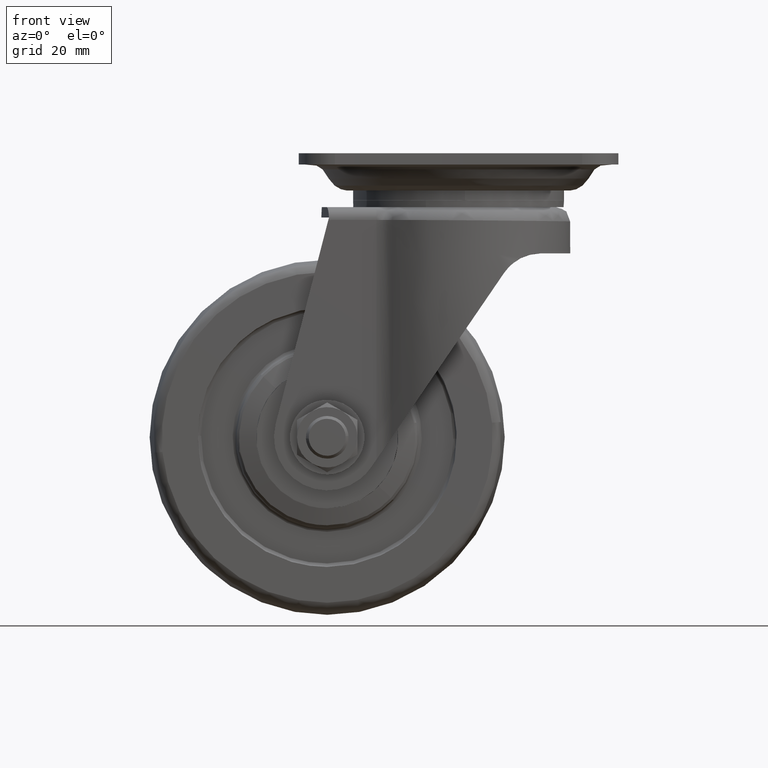
[diagram: clean part render]
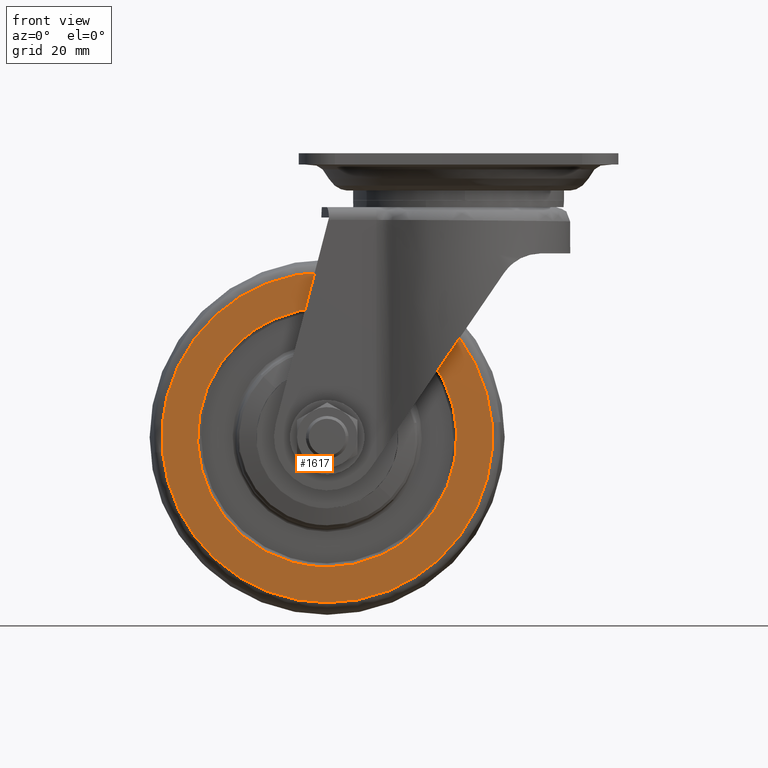
[diagram: same view with one face highlighted and labeled with its STEP entity id]
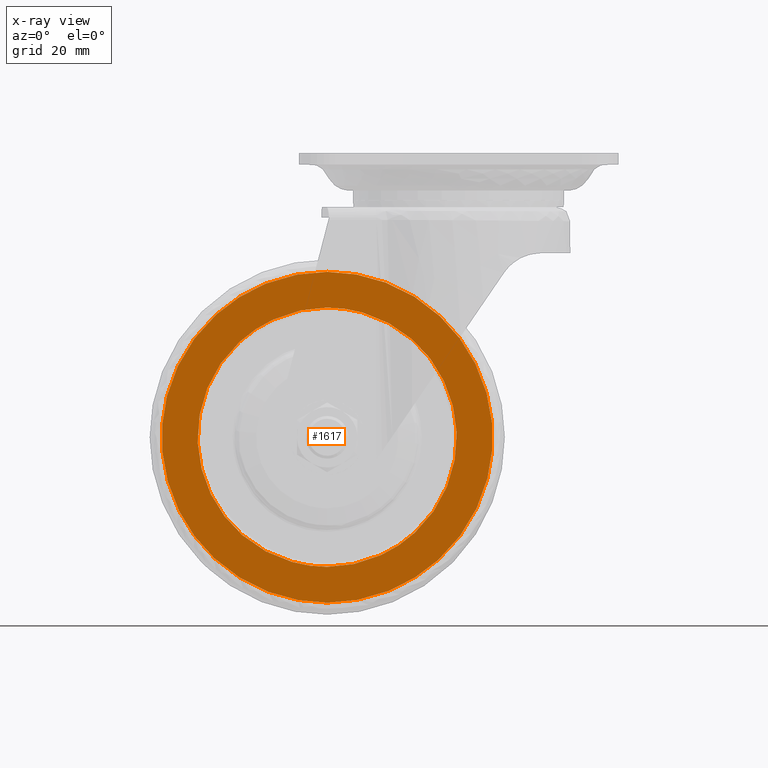
[diagram: x-ray of the same camera — body ghosted, the highlighted face saturated]
A machine part, front view. The second image highlights one B-rep face of the part: STEP entity #1617.
The next image is the same camera in x-ray: the body ghosted, the highlighted face saturated — about 0% of this face is hidden behind the body in this view.
In plain terms, the highlighted face is a freeform B-spline surface patch.
Its self-contained STEP definition (entity closure, byte-faithful):
#1313=CARTESIAN_POINT('',(-12.340957921965780,-19.0,-106.910623251677710));
#1314=VERTEX_POINT('',#1313);
#1320=CARTESIAN_POINT('',(-37.0,-19.0,-43.500000000000007));
#1321=VERTEX_POINT('',#1320);
#1322=CARTESIAN_POINT('',(-12.340957921965783,-19.0,-106.910623251677710));
#1323=CARTESIAN_POINT('',(-0.500000000000000,-18.999999999999996,-96.060384782236724));
#1324=CARTESIAN_POINT('',(-0.500000000000000,-19.0,-80.0));
#1325=CARTESIAN_POINT('',(-0.500000000000000,-18.999999999999996,-43.500000000000007));
#1326=CARTESIAN_POINT('',(-37.0,-19.0,-43.500000000000007));
#1334=(BOUNDED_CURVE()B_SPLINE_CURVE(2,(#1322,#1323,#1324,#1325,#1326),.UNSPECIFIED.,.F.,.U.)B_SPLINE_CURVE_WITH_KNOTS((3,2,3),(0.118415206279579,0.250000000000000,0.500000000000000),.UNSPECIFIED.)CURVE()GEOMETRIC_REPRESENTATION_ITEM()RATIONAL_B_SPLINE_CURVE((0.853959781184122,0.845838824881287,1.0,0.707106781186547,1.0))REPRESENTATION_ITEM(''));
#1335=EDGE_CURVE('',#1314,#1321,#1334,.T.);
#1337=CARTESIAN_POINT('',(-61.659042078034219,-19.0,-53.089376748322287));
#1338=VERTEX_POINT('',#1337);
#1339=CARTESIAN_POINT('',(-37.0,-19.0,-43.500000000000007));
#1340=CARTESIAN_POINT('',(-51.194073322318836,-19.0,-43.500000000000014));
#1341=CARTESIAN_POINT('',(-61.659042078034219,-19.0,-53.089376748322280));
#1349=(BOUNDED_CURVE()B_SPLINE_CURVE(2,(#1339,#1340,#1341),.UNSPECIFIED.,.F.,.U.)B_SPLINE_CURVE_WITH_KNOTS((3,3),(0.500000000000000,0.618415206279579),.UNSPECIFIED.)CURVE()GEOMETRIC_REPRESENTATION_ITEM()RATIONAL_B_SPLINE_CURVE((1.0,0.861267956305260,0.853959781184122))REPRESENTATION_ITEM(''));
#1350=EDGE_CURVE('',#1321,#1338,#1349,.T.);
#1384=CARTESIAN_POINT('',(-37.0,-19.0,-116.500000000000000));
#1385=VERTEX_POINT('',#1384);
#1386=CARTESIAN_POINT('',(-61.659042078034219,-19.0,-53.089376748322280));
#1387=CARTESIAN_POINT('',(-73.500000000000000,-18.999999999999996,-63.939615217763262));
#1388=CARTESIAN_POINT('',(-73.500000000000000,-19.0,-80.0));
#1389=CARTESIAN_POINT('',(-73.500000000000014,-18.999999999999996,-116.499999999999990));
#1390=CARTESIAN_POINT('',(-37.0,-19.0,-116.500000000000000));
#1398=(BOUNDED_CURVE()B_SPLINE_CURVE(2,(#1386,#1387,#1388,#1389,#1390),.UNSPECIFIED.,.F.,.U.)B_SPLINE_CURVE_WITH_KNOTS((3,2,3),(0.618415206279579,0.750000000000000,1.0),.UNSPECIFIED.)CURVE()GEOMETRIC_REPRESENTATION_ITEM()RATIONAL_B_SPLINE_CURVE((0.853959781184122,0.845838824881287,1.0,0.707106781186547,1.0))REPRESENTATION_ITEM(''));
#1399=EDGE_CURVE('',#1338,#1385,#1398,.T.);
#1401=CARTESIAN_POINT('',(-37.0,-19.0,-116.500000000000000));
#1402=CARTESIAN_POINT('',(-22.805926677681168,-19.0,-116.499999999999960));
#1403=CARTESIAN_POINT('',(-12.340957921965783,-19.0,-106.910623251677710));
#1411=(BOUNDED_CURVE()B_SPLINE_CURVE(2,(#1401,#1402,#1403),.UNSPECIFIED.,.F.,.U.)B_SPLINE_CURVE_WITH_KNOTS((3,3),(0.0,0.118415206279579),.UNSPECIFIED.)CURVE()GEOMETRIC_REPRESENTATION_ITEM()RATIONAL_B_SPLINE_CURVE((1.0,0.861267956305260,0.853959781184122))REPRESENTATION_ITEM(''));
#1412=EDGE_CURVE('',#1385,#1314,#1411,.T.);
#1540=CARTESIAN_POINT('',(-88.213874939790486,-19.0,-131.226977011194010));
#1541=CARTESIAN_POINT('',(-88.213874939790486,-19.0,-28.773020490370499));
#1542=CARTESIAN_POINT('',(14.213874939790500,-19.0,-131.226977011194010));
#1543=CARTESIAN_POINT('',(14.213874939790500,-19.0,-28.773020490370499));
#1544=B_SPLINE_SURFACE_WITH_KNOTS('',1,1,((#1540,#1542),(#1541,#1543)),.UNSPECIFIED.,.F.,.F.,.U.,(2,2),(2,2),(0.0,102.453956520823500),(0.0,102.427749879581000),.UNSPECIFIED.);
#1545=CARTESIAN_POINT('',(-37.0,-19.0,-126.574213284602000));
#1546=VERTEX_POINT('',#1545);
#1547=CARTESIAN_POINT('',(9.394139185731817,-19.0,-75.908399633472129));
#1548=VERTEX_POINT('',#1547);
#1549=CARTESIAN_POINT('',(-37.0,-19.0,-126.574213284602000));
#1550=CARTESIAN_POINT('',(9.574213290794873,-18.999999999999996,-126.574213284055830));
#1551=CARTESIAN_POINT('',(9.574213297557947,-19.0,-79.999999998857376));
#1552=CARTESIAN_POINT('',(9.574213297855600,-18.999999999999996,-77.950237224138519));
#1553=CARTESIAN_POINT('',(9.394139185731817,-18.999999999999996,-75.908399633472129));
#1561=(BOUNDED_CURVE()B_SPLINE_CURVE(2,(#1549,#1550,#1551,#1552,#1553),.UNSPECIFIED.,.F.,.U.)B_SPLINE_CURVE_WITH_KNOTS((3,2,3),(0.0,0.250000000000000,0.265281545143490),.UNSPECIFIED.)CURVE()GEOMETRIC_REPRESENTATION_ITEM()RATIONAL_B_SPLINE_CURVE((1.0,0.707106781186547,1.0,0.982096556217920,0.966381850710879))REPRESENTATION_ITEM(''));
#1562=EDGE_CURVE('',#1546,#1548,#1561,.T.);
#1563=ORIENTED_EDGE('',*,*,#1562,.T.);
#1564=CARTESIAN_POINT('',(-37.0,-19.0,-33.425786715397997));
#1565=VERTEX_POINT('',#1564);
#1566=CARTESIAN_POINT('',(9.394139185731817,-18.999999999999996,-75.908399633472129));
#1567=CARTESIAN_POINT('',(5.647504848807643,-19.000000000000004,-33.425786714801539));
#1568=CARTESIAN_POINT('',(-37.0,-19.0,-33.425786715397997));
#1576=(BOUNDED_CURVE()B_SPLINE_CURVE(2,(#1566,#1567,#1568),.UNSPECIFIED.,.F.,.U.)B_SPLINE_CURVE_WITH_KNOTS((3,3),(0.265281545143490,0.500000000000000),.UNSPECIFIED.)CURVE()GEOMETRIC_REPRESENTATION_ITEM()RATIONAL_B_SPLINE_CURVE((0.966381850710879,0.725010224968627,1.0))REPRESENTATION_ITEM(''));
#1577=EDGE_CURVE('',#1548,#1565,#1576,.T.);
#1578=ORIENTED_EDGE('',*,*,#1577,.T.);
#1579=CARTESIAN_POINT('',(-83.394139185731817,-19.0,-84.091600366527871));
#1580=VERTEX_POINT('',#1579);
#1581=CARTESIAN_POINT('',(-37.0,-19.0,-33.425786715397997));
#1582=CARTESIAN_POINT('',(-83.574213290794873,-18.999999999999996,-33.425786715944156));
#1583=CARTESIAN_POINT('',(-83.574213297557947,-19.0,-80.000000001142595));
#1584=CARTESIAN_POINT('',(-83.574213297855607,-18.999999999999996,-82.049762775861467));
#1585=CARTESIAN_POINT('',(-83.394139185731817,-18.999999999999996,-84.091600366527871));
#1593=(BOUNDED_CURVE()B_SPLINE_CURVE(2,(#1581,#1582,#1583,#1584,#1585),.UNSPECIFIED.,.F.,.U.)B_SPLINE_CURVE_WITH_KNOTS((3,2,3),(0.500000000000000,0.750000000000000,0.765281545143490),.UNSPECIFIED.)CURVE()GEOMETRIC_REPRESENTATION_ITEM()RATIONAL_B_SPLINE_CURVE((1.0,0.707106781186547,1.0,0.982096556217920,0.966381850710879))REPRESENTATION_ITEM(''));
#1594=EDGE_CURVE('',#1565,#1580,#1593,.T.);
#1595=ORIENTED_EDGE('',*,*,#1594,.T.);
#1596=CARTESIAN_POINT('',(-83.394139185731817,-18.999999999999996,-84.091600366527871));
#1597=CARTESIAN_POINT('',(-79.647504848807642,-19.000000000000004,-126.574213285198430));
#1598=CARTESIAN_POINT('',(-37.0,-19.0,-126.574213284602000));
#1606=(BOUNDED_CURVE()B_SPLINE_CURVE(2,(#1596,#1597,#1598),.UNSPECIFIED.,.F.,.U.)B_SPLINE_CURVE_WITH_KNOTS((3,3),(0.765281545143490,1.0),.UNSPECIFIED.)CURVE()GEOMETRIC_REPRESENTATION_ITEM()RATIONAL_B_SPLINE_CURVE((0.966381850710879,0.725010224968627,1.0))REPRESENTATION_ITEM(''));
#1607=EDGE_CURVE('',#1580,#1546,#1606,.T.);
#1608=ORIENTED_EDGE('',*,*,#1607,.T.);
#1609=EDGE_LOOP('',(#1563,#1578,#1595,#1608));
#1610=FACE_OUTER_BOUND('',#1609,.T.);
#1611=ORIENTED_EDGE('',*,*,#1350,.F.);
#1612=ORIENTED_EDGE('',*,*,#1335,.F.);
#1613=ORIENTED_EDGE('',*,*,#1412,.F.);
#1614=ORIENTED_EDGE('',*,*,#1399,.F.);
#1615=EDGE_LOOP('',(#1611,#1612,#1613,#1614));
#1616=FACE_BOUND('',#1615,.T.);
#1617=ADVANCED_FACE('',(#1610,#1616),#1544,.F.);